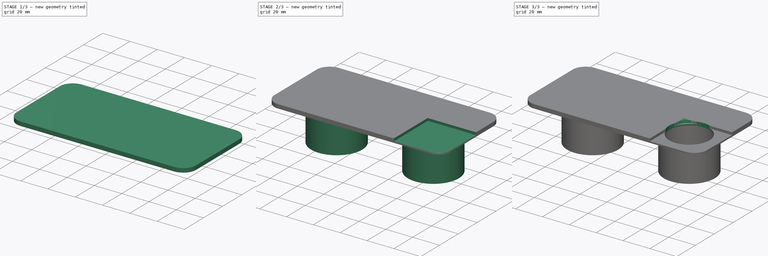
[diagram: build sequence overview — one tinted view per stage of 3, left to right]
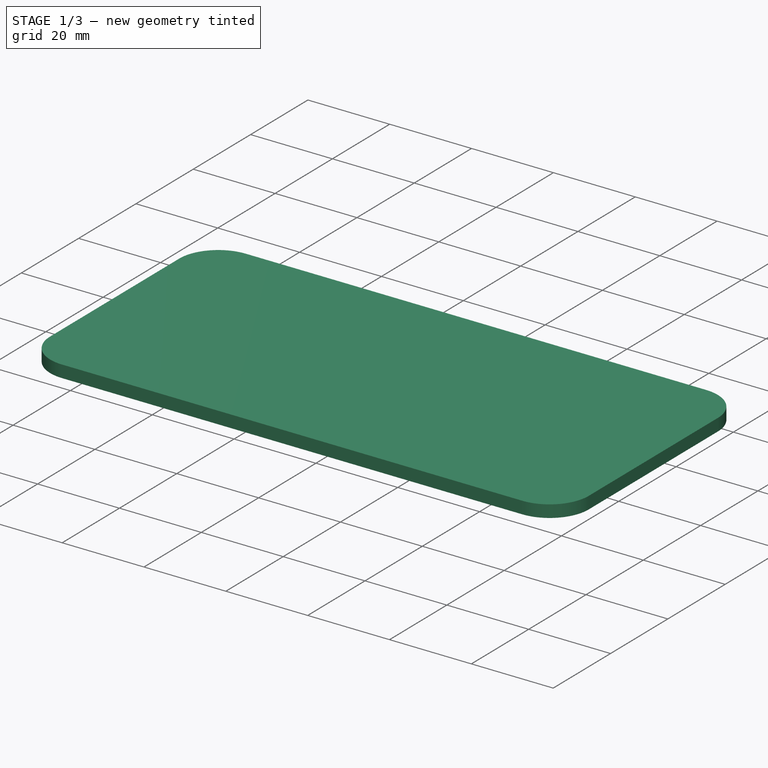
[diagram: stage 1 of 3 — iso view after this stage's code; geometry added in this stage tinted green]
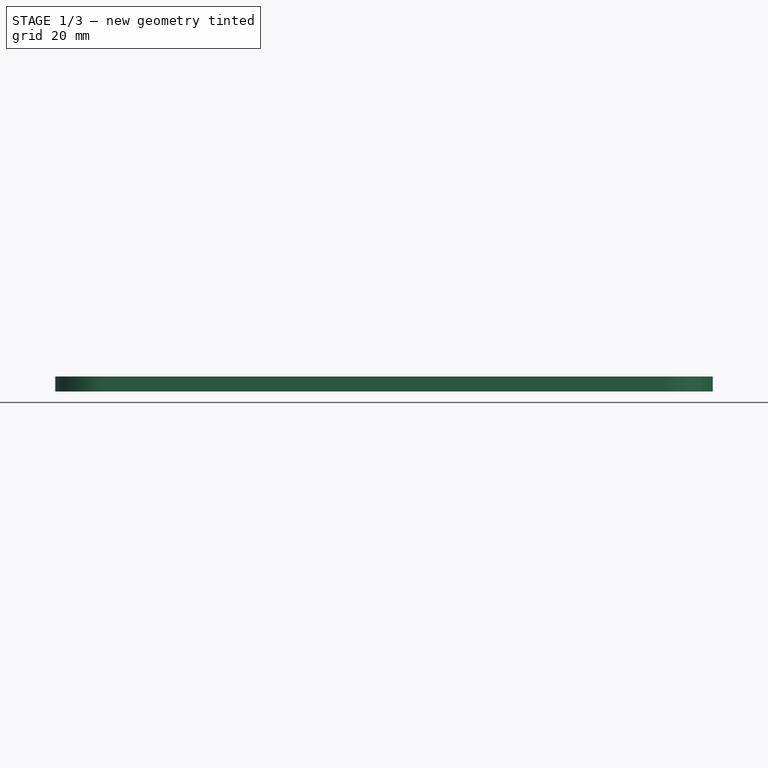
[diagram: stage 1 of 3 — front view after this stage's code; geometry added in this stage tinted green]
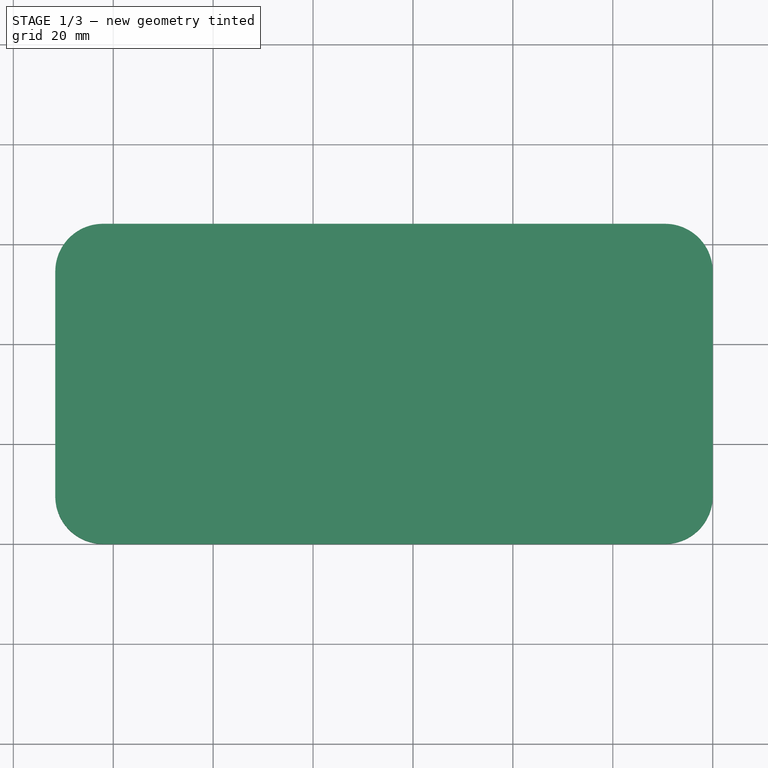
[diagram: stage 1 of 3 — top view after this stage's code; geometry added in this stage tinted green]
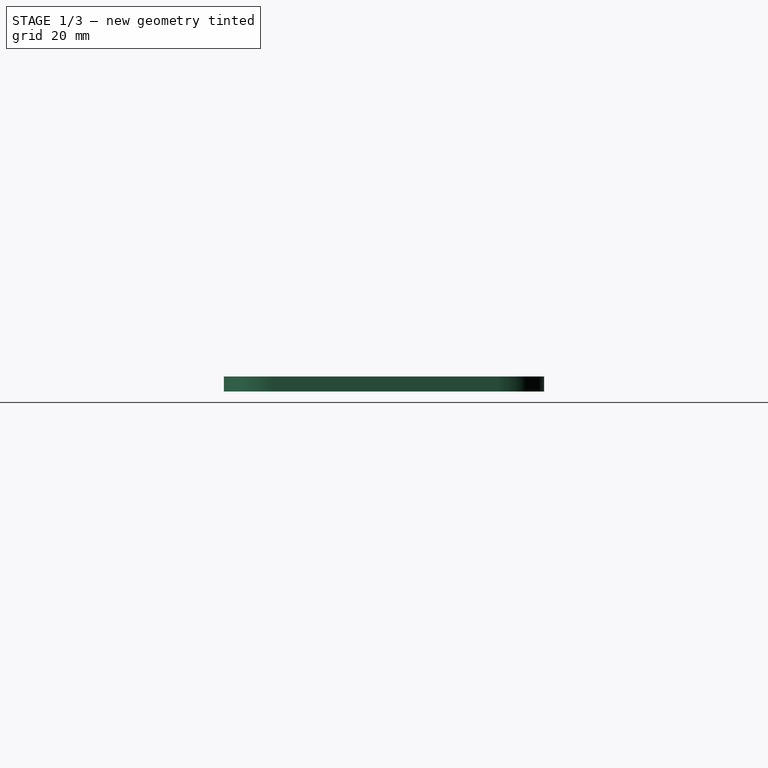
[diagram: stage 1 of 3 — right view after this stage's code; geometry added in this stage tinted green]
FCSTD DOCUMENT  (FreeCAD 0.22R35554 (Git))
Label: zoom
License: Creative Commons Attribution 4.0
LicenseURL: https://creativecommons.org/licenses/by/4.0/
objects: Sketcher::SketchObject×3, PartDesign::Pad×3, PartDesign::SubtractiveCylinder×2, Spreadsheet::Sheet×1, PartDesign::AdditiveCylinder×1, PartDesign::SubtractiveBox×1, PartDesign::Body×1
note: 18 computed .brp shape members not serialized (recipe doc carries the construction recipe); baked Part::Feature solids carry a one-line shape summary decoded from their .brp

FEATURE [Spreadsheet::Sheet] Spreadsheet  label="i13"
  cells = A1='base_length; B1(base_length)=131.6; A2='base_width; B2(base_width)=64.1; A3='base_height; B3(base_height)=3; A4='camera_bump_x; B4(camera_bump_x)=2.4; A5='camera_bump_y; B5(camera_bump_y)=2.4; A6='camera_bump_length; B6(camera_bump_length)=30; A7='camera_bump_width; B7(camera_bump_width)=30; A8='camera_bump_height; B8(camera_bump_height)=2.2; A9='lens_to_x; B9(lens_to_x)=22; A10='lens_to_y; B10(lens_to_y)=22; A11='eye_piece_hole Ziess TL; B11(eye_peice_hole_ztl)==eye_piece_outer_max_ztl - 2; A12='eye_piece_inner Ziess TL; B12(eye_piece_inner_ztl)==24 / 2; A13='eye_piece_outer_min Ziess TL; B13(eye_piece_outer_min_ztl)==32.5 / 2; A14='eye_piece_outer_max; B14(eye_piece_outer_max_ztl)==34 / 2; A15='eye_piece_distance Ziess TL; B15(eye_piece_distance_ztl)=72; A16='eye_piece_height Ziess TL; B16(eye_piece_height_ztl)=20.4; A17='eye_piece_width Ziess TL; B17(eye_piece_width_ztl)=5; A18='m3_hole_radius; B18(m3_hole_radius)=1.6; A19='m3_nut_radius; B19(m3_nut_radius)==7 / 2; A20='m3_nut_height; B20(m3_nut_height)=3; A21='m3_nut_x; B21(m3_nut_x)=24; A22='m3_nut_y_min; B22(m3_nut_y_min)=7; A23='m3_nut_y_max; B23(m3_nut_y_max)=25; A24='m3_nut_depth; B24(m3_nut_depth)=6
FEATURE [Sketcher::SketchObject] Sketch
  FullyConstrained = true
  MapMode = 5
  Support = -> [XY_Plane]
  expr: Constraints[21] = <<i13>>.base_length
  expr: Constraints[22] = <<i13>>.base_width
  sketch-geometry (10):
    g0: LineSegment StartX=-9.56 StartY=64.1 StartZ=0 EndX=-122.04 EndY=64.1 EndZ=0
    g1: LineSegment StartX=-131.6 StartY=54.54 StartZ=0 EndX=-131.6 EndY=9.56 EndZ=0
    g2: LineSegment StartX=-122.04 StartY=1.22853e-11 StartZ=0 EndX=-9.56 EndY=1.22853e-11 EndZ=0
    g3: LineSegment StartX=-1.22853e-11 StartY=9.56 StartZ=0 EndX=-1.22853e-11 EndY=54.54 EndZ=0
    g4: ArcOfCircle CenterX=-9.56 CenterY=54.54 CenterZ=0 NormalX=0 NormalY=0 NormalZ=1 AngleXU=0 Radius=9.56 StartAngle=0 EndAngle=1.5708
    g5: ArcOfCircle CenterX=-122.04 CenterY=54.54 CenterZ=0 NormalX=0 NormalY=0 NormalZ=1 AngleXU=0 Radius=9.56 StartAngle=1.5708 EndAngle=3.14159
    g6: ArcOfCircle CenterX=-122.04 CenterY=9.56 CenterZ=0 NormalX=0 NormalY=0 NormalZ=1 AngleXU=0 Radius=9.56 StartAngle=3.14159 EndAngle=4.71239
    g7: ArcOfCircle CenterX=-9.56 CenterY=9.56 CenterZ=0 NormalX=0 NormalY=0 NormalZ=1 AngleXU=0 Radius=9.56 StartAngle=4.71239 EndAngle=6.28319
    g8: GeomPoint X=0 Y=64.1 Z=0
    g9: GeomPoint X=-131.6 Y=0 Z=0
  constraints (24):
    c: Tangent(g0,g4) = -1.5708
    c: Tangent(g0,g5) = -1.5708
    c: Tangent(g1,g5) = -1.5708
    c: Tangent(g1,g6) = -1.5708
    c: Tangent(g2,g6) = -1.5708
    c: Tangent(g2,g7) = -1.5708
    c: Tangent(g3,g7) = -1.5708
    c: Tangent(g3,g4) = -1.5708
    c: Horizontal(g0)
    c: Horizontal(g2)
    c: Vertical(g1)
    c: Vertical(g3)
    c: Equal(g4,g5)
    c: Equal(g5,g6)
    c: Equal(g6,g7)
    c: PointOnObject(g8,g0)
    c: PointOnObject(g8,g3)
    c: PointOnObject(g9,g1)
    c: PointOnObject(g9,g2)
    c: PointOnObject(g8,g-2)
    c: PointOnObject(g9,g-1)
    c: DistanceX(g1,g3) = 131.6
    c: DistanceY(g2,g0) = 64.1
    c: Radius(g5) = 9.56
FEATURE [PartDesign::Pad] Pad
  Direction = (0,0,1)
  Length = 3
  Length2 = 10
  Profile = -> Sketch
  ReferenceAxis = -> Sketch [N_Axis]
  Type = 0
FEATURE [PartDesign::SubtractiveCylinder] Cylinder
  Angle = 360
  AttacherType = Attacher::AttachEngine3D
  AttachmentOffset = pos=(-65.8,32.05,-1.7) rot=(0,0,1;0rad)
  BaseFeature = -> Pad
  FirstAngle = 0
  Height = 1.4
  MapMode = 5
  Placement = pos=(-65.8,32.05,1.3) rot=(0,0,1;0rad)
  Radius = 28.25
  SecondAngle = 0
  Support = -> [Pad]
  expr: .AttachmentOffset.Base.x = -<<i13>>.base_length / 2
  expr: .AttachmentOffset.Base.y = <<i13>>.base_width / 2
  expr: Radius = 56.5 / 2
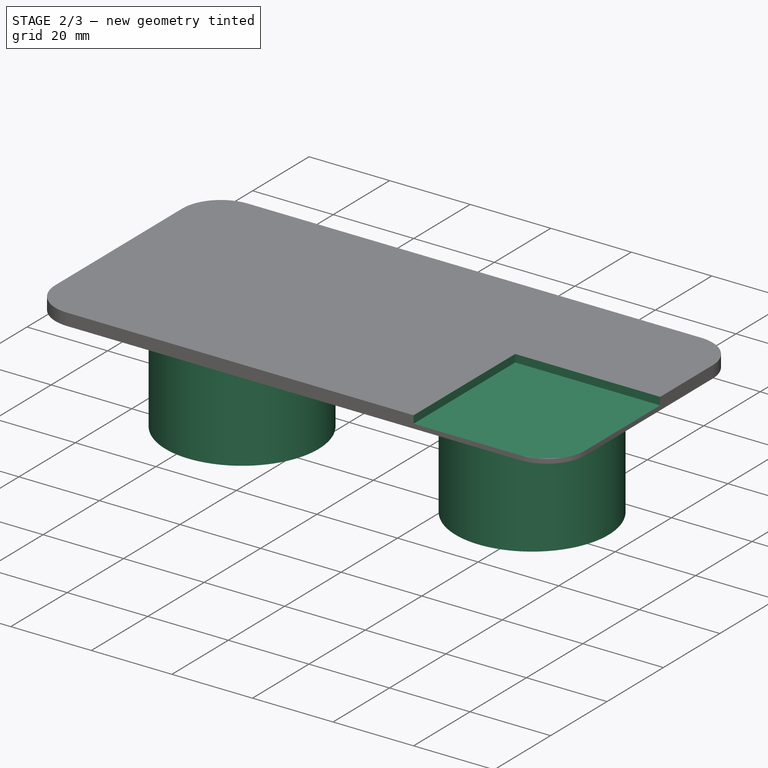
[diagram: stage 2 of 3 — iso view after this stage's code; geometry added in this stage tinted green]
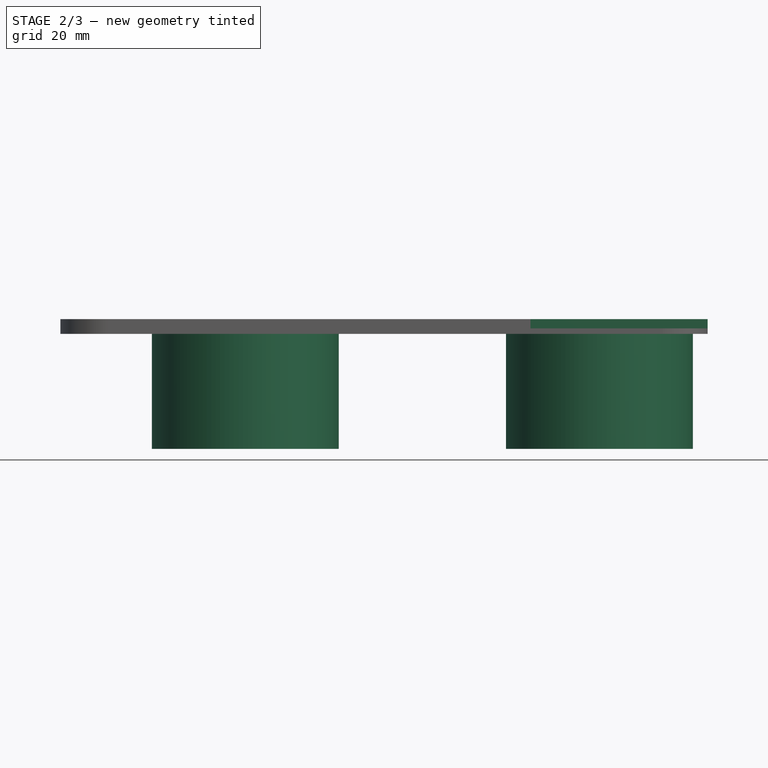
[diagram: stage 2 of 3 — front view after this stage's code; geometry added in this stage tinted green]
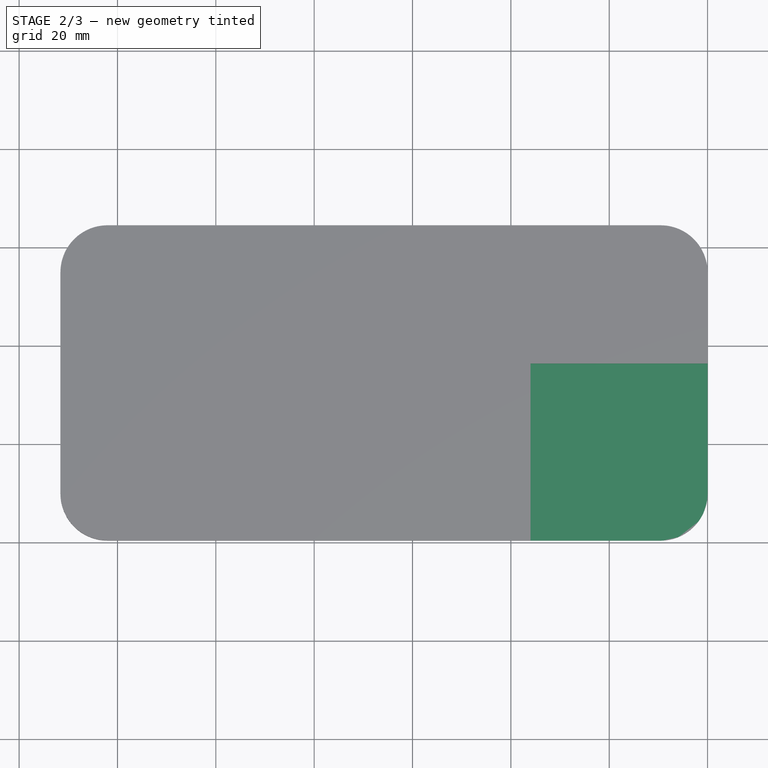
[diagram: stage 2 of 3 — top view after this stage's code; geometry added in this stage tinted green]
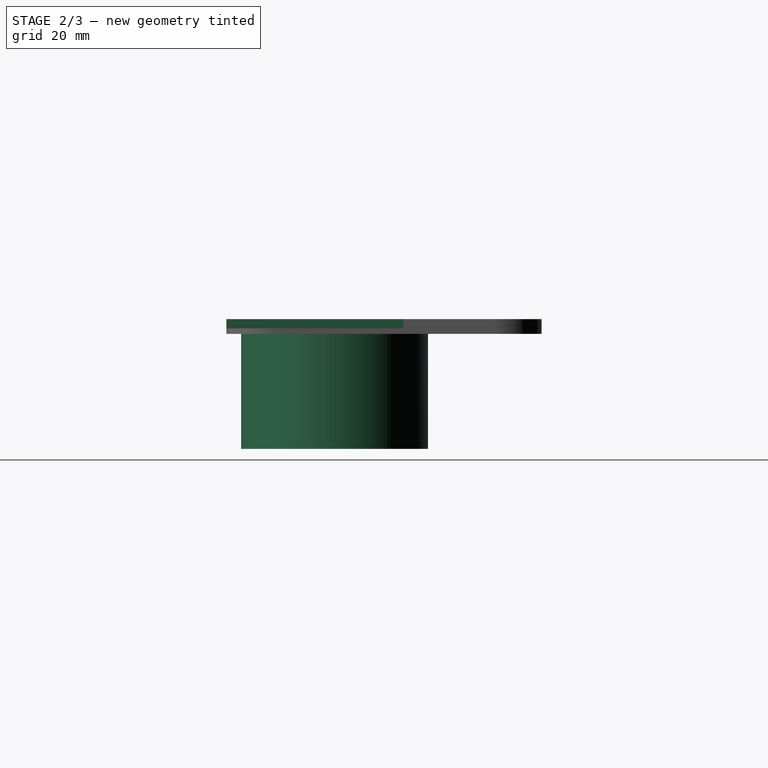
[diagram: stage 2 of 3 — right view after this stage's code; geometry added in this stage tinted green]
FEATURE [PartDesign::AdditiveCylinder] Cylinder001
  Angle = 360
  AttacherType = Attacher::AttachEngine3D
  BaseFeature = -> Cylinder
  FirstAngle = 0
  Height = 1
  MapMode = 5
  Placement = pos=(-65.8,32.05,2.7) rot=(1,0,0;3.14159rad)
  Radius = 22
  SecondAngle = 0
  Support = -> [Cylinder]
  expr: Radius = 44 / 2
FEATURE [Sketcher::SketchObject] Sketch001
  FullyConstrained = true
  MapMode = 5
  Support = -> [XY_Plane]
  expr: Constraints[3] = <<i13>>.lens_to_y
  expr: Constraints[4] = <<i13>>.lens_to_x
  expr: Constraints[8] = <<i13>>.eye_piece_distance_ztl
  expr: Constraints[9] = <<i13>>.eye_piece_outer_max_ztl
  sketch-geometry (4):
    g0: Circle CenterX=-22 CenterY=22 CenterZ=0 NormalX=0 NormalY=0 NormalZ=1 AngleXU=0 Radius=19
    g1: Circle CenterX=-22 CenterY=22 CenterZ=0 NormalX=0 NormalY=0 NormalZ=1 AngleXU=0 Radius=17
    g2: Circle CenterX=-94 CenterY=22 CenterZ=0 NormalX=0 NormalY=0 NormalZ=1 AngleXU=0 Radius=19
    g3: Circle CenterX=-94 CenterY=22 CenterZ=0 NormalX=0 NormalY=0 NormalZ=1 AngleXU=0 Radius=17
  constraints (10):
    c: Coincident(g1,g0)
    c: Coincident(g3,g2)
    c: Horizontal(g2,g0)
    c: DistanceX(g0,g-1) = 22
    c: DistanceY(g-1,g0) = 22
    c: Equal(g3,g1)
    c: Equal(g2,g0)
    c: Distance(g0,g1) = 2
    c: DistanceX(g2,g0) = 72
    c: Radius(g1) = 17
FEATURE [PartDesign::Pad] Pad001
  BaseFeature = -> Cylinder001
  Direction = (0,0,1)
  Length = 0
  Length2 = 23.4
  Placement = pos=(-65.8,32.05,2.7) rot=(1,0,0;3.14159rad)
  Profile = -> Sketch001
  ReferenceAxis = -> Sketch001 [N_Axis]
  Type = 4
  expr: Length2 = <<i13>>.eye_piece_height_ztl + 3
FEATURE [PartDesign::SubtractiveBox] Box
  AttacherType = Attacher::AttachEngine3D
  AttachmentOffset = pos=(-36,0,1.1) rot=(0,0,1;0rad)
  BaseFeature = -> Pad001
  Height = 2.2
  Length = 36
  MapMode = 2
  Placement = pos=(-36,0,1.1) rot=(0,0,1;0rad)
  Support = -> [X_Axis]
  Width = 36
  expr: .AttachmentOffset.Base.z = <<i13>>.camera_bump_height / 2
  expr: Height = <<i13>>.camera_bump_height
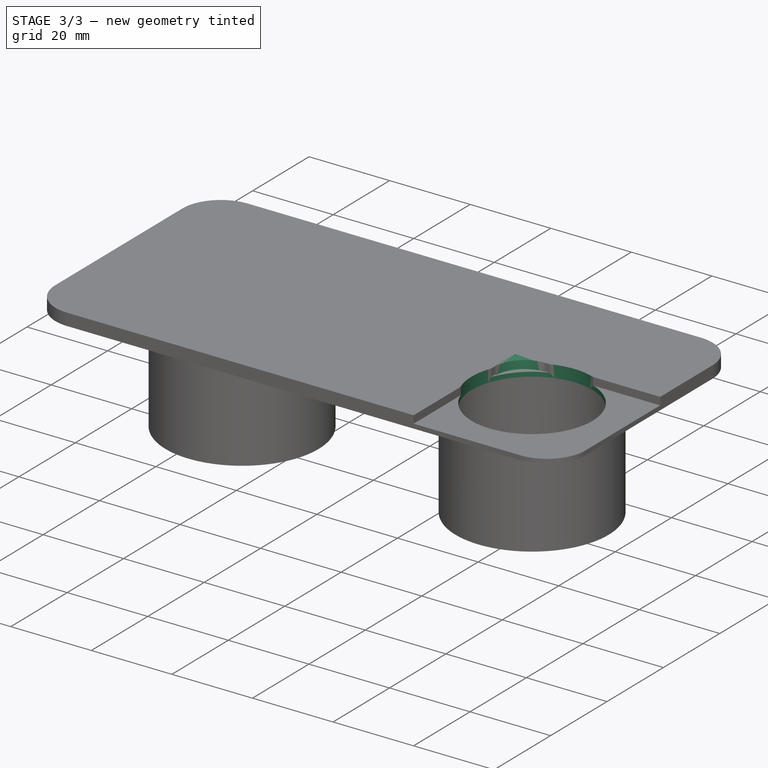
[diagram: stage 3 of 3 — iso view after this stage's code; geometry added in this stage tinted green]
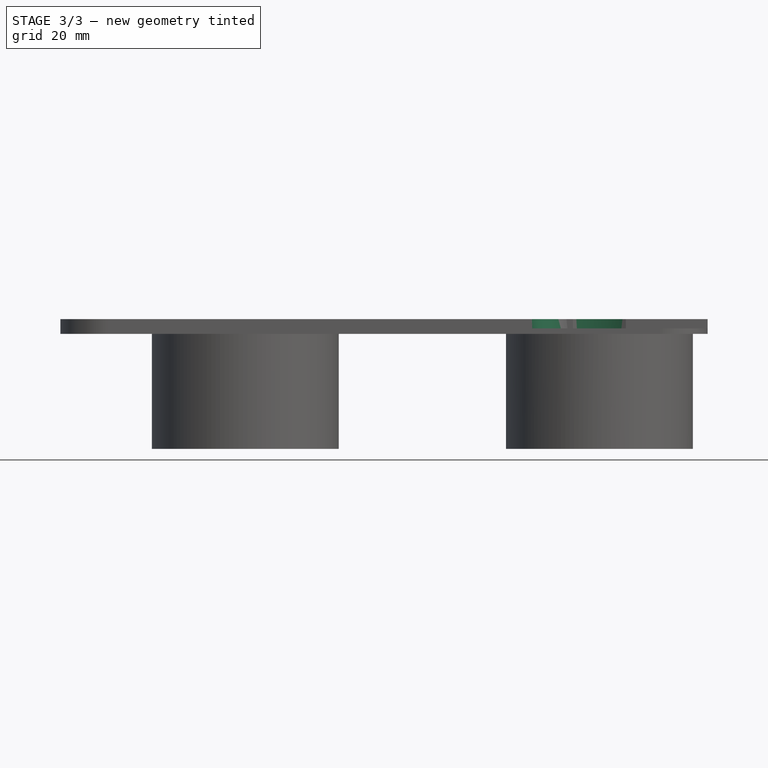
[diagram: stage 3 of 3 — front view after this stage's code; geometry added in this stage tinted green]
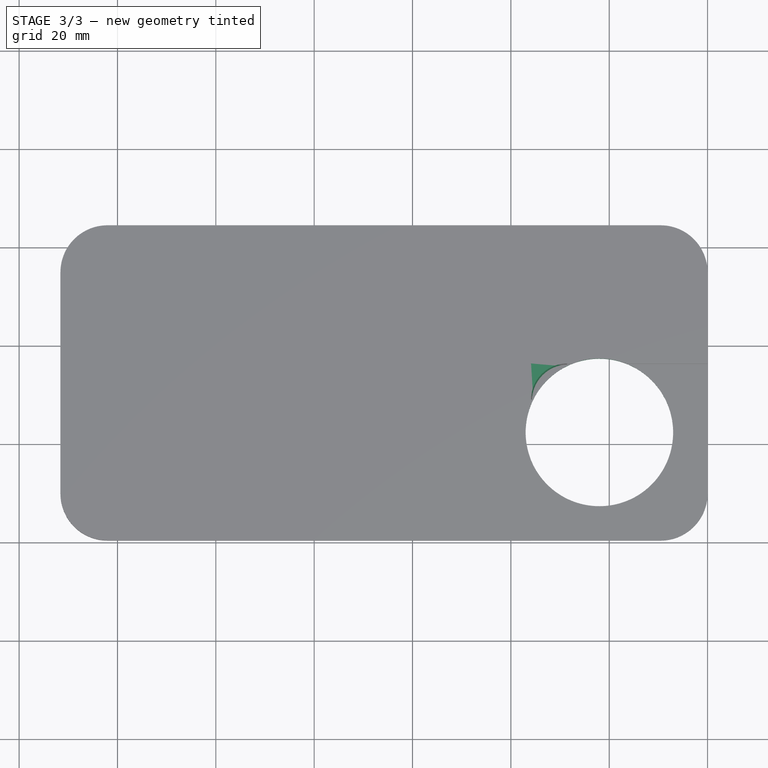
[diagram: stage 3 of 3 — top view after this stage's code; geometry added in this stage tinted green]
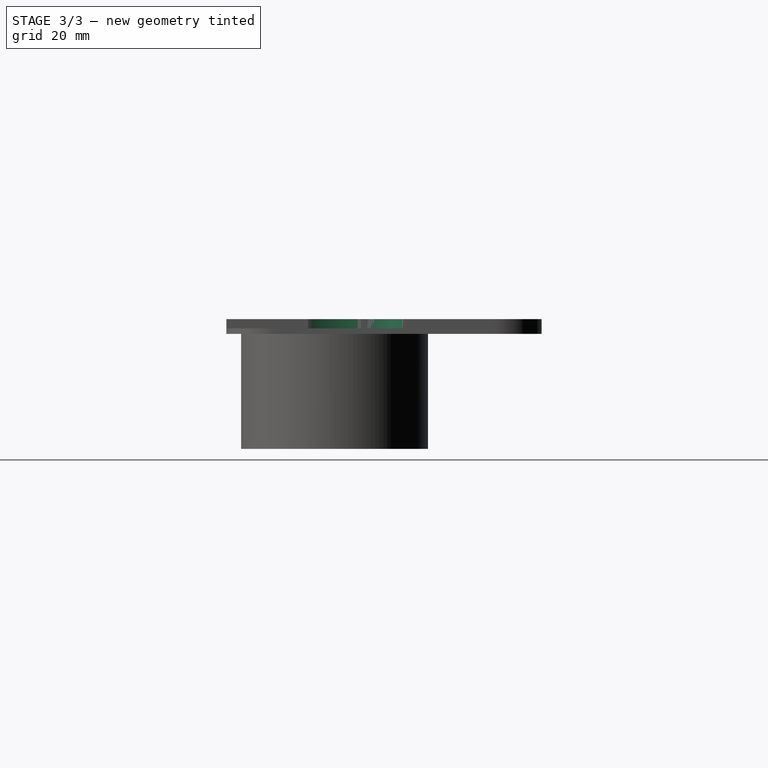
[diagram: stage 3 of 3 — right view after this stage's code; geometry added in this stage tinted green]
FEATURE [Sketcher::SketchObject] Sketch002
  FullyConstrained = true
  MapMode = 5
  Support = -> [XY_Plane]
  sketch-geometry (4):
    g0: GeomPoint X=0 Y=0 Z=0
    g1: ArcOfCircle CenterX=-28.2265 CenterY=28.3265 CenterZ=0 NormalX=0 NormalY=0 NormalZ=1 AngleXU=0 Radius=7.37528 StartAngle=1.59296 EndAngle=3.11943
    g2: LineSegment StartX=-35.6 StartY=28.49 StartZ=0 EndX=-35.6 EndY=35.7 EndZ=0
    g3: LineSegment StartX=-35.6 StartY=35.7 StartZ=0 EndX=-28.39 EndY=35.7 EndZ=0
  constraints (11):
    c: Coincident(g0,g-1)
    c: Angle(g1) = 1.52646
    c: DistanceY(g-1,g1) = 35.7
    c: DistanceX(g1,g-1) = 35.6
    c: DistanceX(g1,g-1) = 28.39
    c: Coincident(g1,g2)
    c: Coincident(g2,g3)
    c: Coincident(g3,g1)
    c: Equal(g2,g3)
    c: Vertical(g2)
    c: Horizontal(g3)
FEATURE [PartDesign::Pad] Pad002
  BaseFeature = -> Box
  Direction = (-0.1,0.1,1)
  Length = 2.2
  Length2 = 10
  Placement = pos=(-36,0,1.1) rot=(0,0,1;0rad)
  Profile = -> Sketch002
  ReferenceAxis = -> Sketch002 [N_Axis]
  Type = 3
  UpToFace = -> Box [Face5]
  UseCustomVector = true
  expr: Length = <<i13>>.camera_bump_height
FEATURE [PartDesign::SubtractiveCylinder] Cylinder002
  Angle = 360
  AttacherType = Attacher::AttachEngine3D
  BaseFeature = -> Pad002
  FirstAngle = 0
  Height = 3
  MapMode = 11
  Placement = pos=(-22,22,-8e-16) rot=(0,0,1;4.06889rad)
  Radius = 15
  SecondAngle = 0
  Support = -> [Pad002]
  expr: Height = <<i13>>.base_height
  expr: Radius = <<i13>>.eye_peice_hole_ztl
FEATURE [PartDesign::Body] Body  label="base"
  Group = -> [Sketch,Pad,Cylinder,Cylinder001,Sketch001,Pad001,Box,Sketch002,Pad002,Cylinder002]
  Origin = -> Origin
  Tip = -> Cylinder002
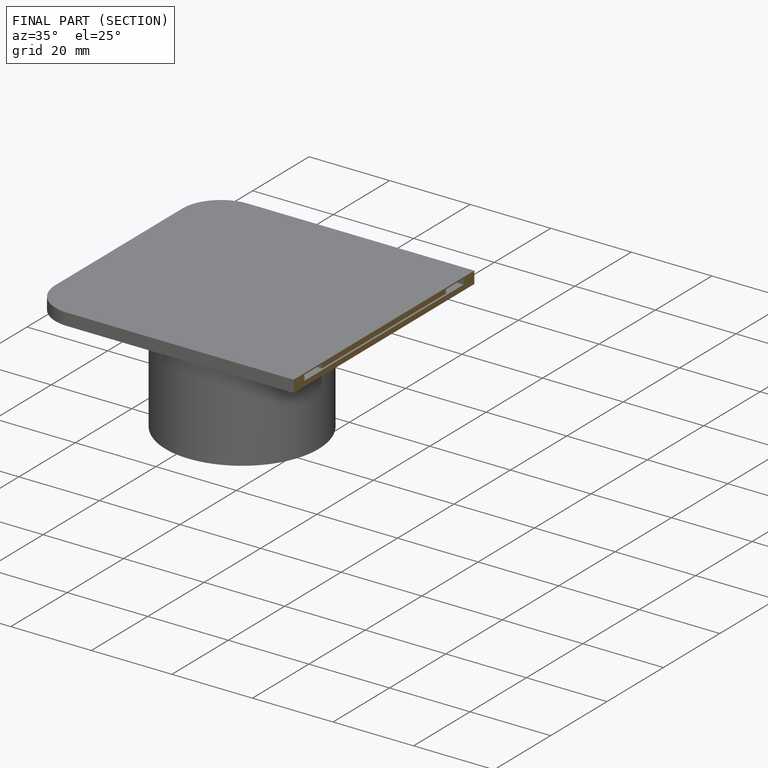
[diagram: finished part — half-section view (interior)]
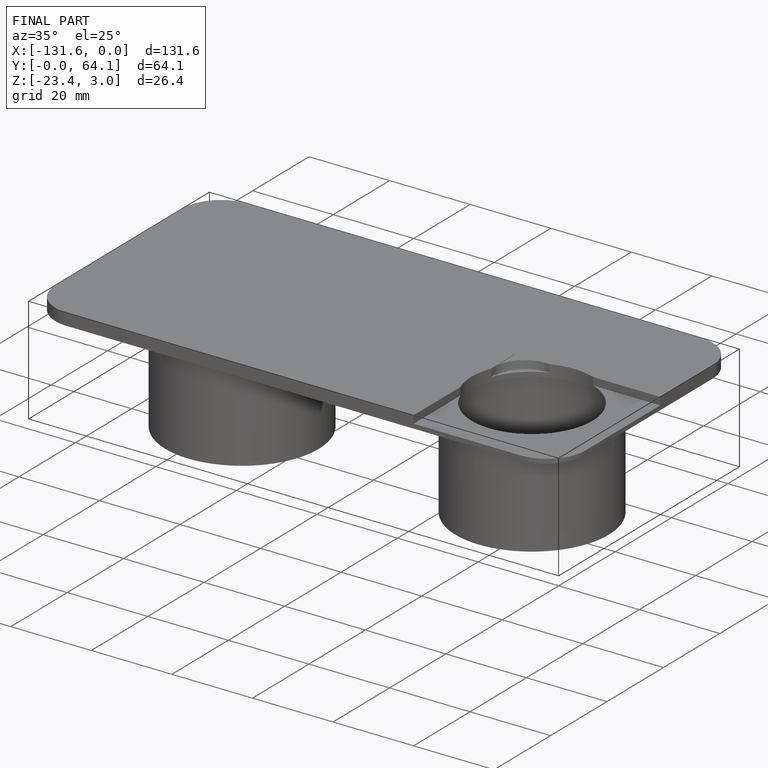
[diagram: finished part — iso view with bounding-box wireframe]
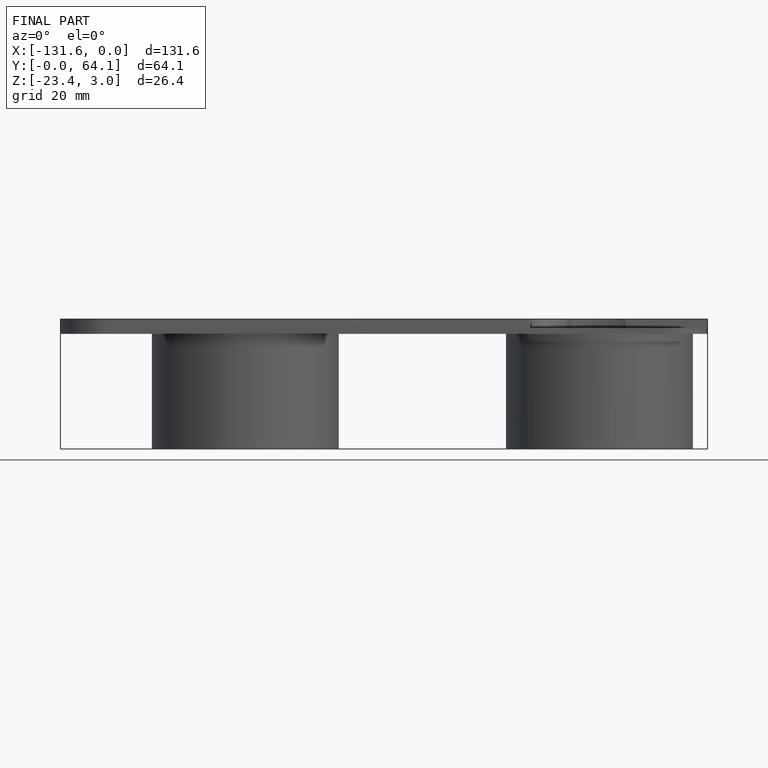
[diagram: finished part — front view with bounding-box wireframe]
